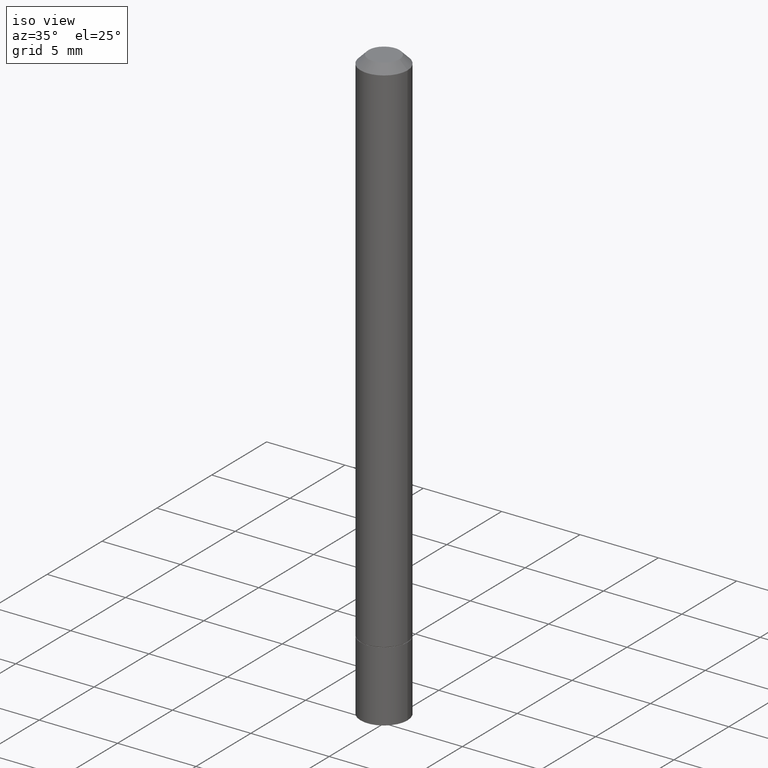
[diagram: clean part render]
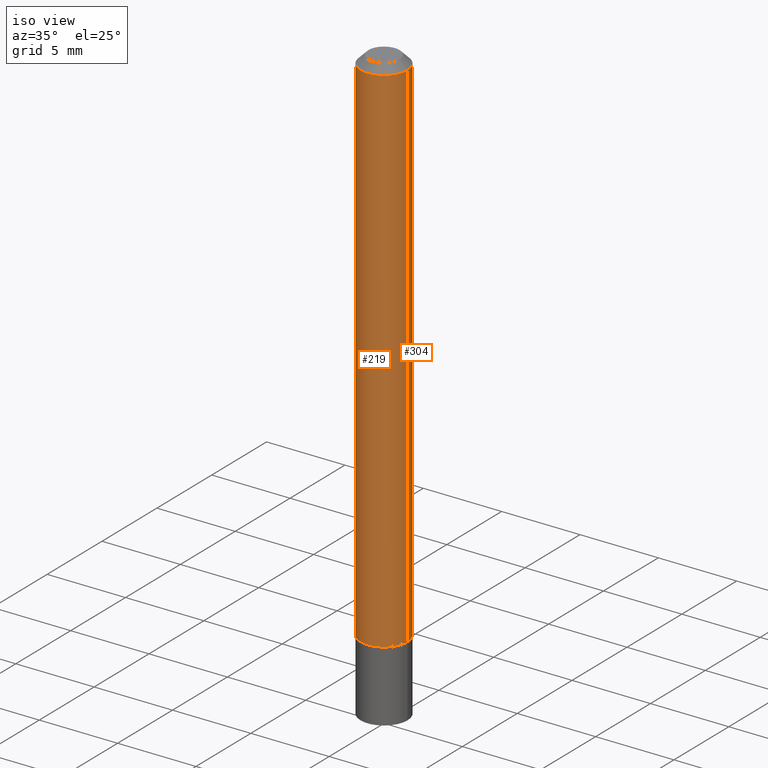
[diagram: same view with one multi-face feature highlighted, each face labeled with its STEP entity id]
A machine part, iso view. The highlighted faces form ONE feature: a constant-radius fillet chain: 2 tangent blend faces with common blend radius 1.4999 mm. The faces share edges in the B-rep.
Their STEP definitions:
[1] entity #219 (Cylinder):
#6 = CARTESIAN_POINT ( 'NONE',  ( -0.05904999999999999832, -1.916050956152782034E-15, -1.317899999999999627 ) ) ;
#19 = DIRECTION ( 'NONE',  ( 1.000000000000000000, -6.982962677686267499E-15, 4.876176775795936353E-29 ) ) ;
#35 = ORIENTED_EDGE ( 'NONE', *, *, #291, .F. ) ;
#56 = EDGE_CURVE ( 'NONE', #97, #138, #267, .T. ) ;
#61 = DIRECTION ( 'NONE',  ( 1.000000000000000000, -6.982962677686266711E-15, 0.000000000000000000 ) ) ;
#62 = CIRCLE ( 'NONE', #264, 0.05904999999999999832 ) ;
#63 = EDGE_CURVE ( 'NONE', #97, #185, #62, .T. ) ;
#65 = CARTESIAN_POINT ( 'NONE',  ( -0.05904999999999997057, 4.195754854663389506E-16, -2.904631170795520841E-30 ) ) ;
#81 = AXIS2_PLACEMENT_3D ( 'NONE', #296, #195, #19 ) ;
#83 = CYLINDRICAL_SURFACE ( 'NONE', #81, 0.05904999999999997057 ) ;
#89 = VECTOR ( 'NONE', #116, 39.37007874015748143 ) ;
#92 = DIRECTION ( 'NONE',  ( -2.445468806185136597E-29, 3.491481338843145583E-15, 1.000000000000000000 ) ) ;
#93 = CARTESIAN_POINT ( 'NONE',  ( 4.890937612370288923E-31, -6.982962677686312563E-17, -0.02000000000000006287 ) ) ;
#97 = VERTEX_POINT ( 'NONE', #6 ) ;
#99 = DIRECTION ( 'NONE',  ( -2.445468806185136597E-29, 3.491481338843145583E-15, 1.000000000000000000 ) ) ;
#101 = CARTESIAN_POINT ( 'NONE',  ( 0.05904999999999994975, -4.749420335452716734E-16, -0.02000000000000006287 ) ) ;
#116 = DIRECTION ( 'NONE',  ( -2.445468806185136877E-29, 3.491481338843145188E-15, 1.000000000000000000 ) ) ;
#119 = EDGE_LOOP ( 'NONE', ( #279, #287, #208, #35 ) ) ;
#123 = VERTEX_POINT ( 'NONE', #101 ) ;
#136 = DIRECTION ( 'NONE',  ( -2.445468806185136877E-29, 3.491481338843145188E-15, 1.000000000000000000 ) ) ;
#138 = VERTEX_POINT ( 'NONE', #300 ) ;
#153 = CARTESIAN_POINT ( 'NONE',  ( 0.05904999999999997057, -4.123439461173738848E-16, 2.879382386107498819E-30 ) ) ;
#161 = FACE_OUTER_BOUND ( 'NONE', #119, .T. ) ;
#170 = CIRCLE ( 'NONE', #254, 0.05904999999999994975 ) ;
#185 = VERTEX_POINT ( 'NONE', #329 ) ;
#195 = DIRECTION ( 'NONE',  ( -2.445468806185136597E-29, 3.491481338843145583E-15, 1.000000000000000000 ) ) ;
#208 = ORIENTED_EDGE ( 'NONE', *, *, #353, .T. ) ;
#217 = DIRECTION ( 'NONE',  ( 1.000000000000000000, -6.982962677686273021E-15, 0.000000000000000000 ) ) ;
#219 = ADVANCED_FACE ( 'NONE', ( #161 ), #83, .T. ) ;
#221 = VECTOR ( 'NONE', #136, 39.37007874015748143 ) ;
#231 = LINE ( 'NONE', #153, #89 ) ;
#254 = AXIS2_PLACEMENT_3D ( 'NONE', #93, #92, #61 ) ;
#264 = AXIS2_PLACEMENT_3D ( 'NONE', #355, #99, #217 ) ;
#267 = LINE ( 'NONE', #65, #221 ) ;
#279 = ORIENTED_EDGE ( 'NONE', *, *, #56, .F. ) ;
#287 = ORIENTED_EDGE ( 'NONE', *, *, #63, .T. ) ;
#291 = EDGE_CURVE ( 'NONE', #138, #123, #170, .T. ) ;
#296 = CARTESIAN_POINT ( 'NONE',  ( 0.000000000000000000, 0.000000000000000000, 0.000000000000000000 ) ) ;
#300 = CARTESIAN_POINT ( 'NONE',  ( -0.05904999999999994975, 3.425143193405105373E-16, -0.02000000000000006287 ) ) ;
#329 = CARTESIAN_POINT ( 'NONE',  ( 0.05904999999999999832, -5.013767202578754676E-15, -1.317899999999999627 ) ) ;
#353 = EDGE_CURVE ( 'NONE', #185, #123, #231, .T. ) ;
#355 = CARTESIAN_POINT ( 'NONE',  ( 3.222883339671390452E-29, -4.601423256461380545E-15, -1.317899999999999627 ) ) ;
[2] entity #304 (Cylinder):
#6 = CARTESIAN_POINT ( 'NONE',  ( -0.05904999999999999832, -1.916050956152782034E-15, -1.317899999999999627 ) ) ;
#9 = CIRCLE ( 'NONE', #110, 0.05904999999999999832 ) ;
#36 = CARTESIAN_POINT ( 'NONE',  ( 0.000000000000000000, 0.000000000000000000, 0.000000000000000000 ) ) ;
#43 = ORIENTED_EDGE ( 'NONE', *, *, #56, .T. ) ;
#56 = EDGE_CURVE ( 'NONE', #97, #138, #267, .T. ) ;
#64 = DIRECTION ( 'NONE',  ( -2.445468806185136597E-29, 3.491481338843145583E-15, 1.000000000000000000 ) ) ;
#65 = CARTESIAN_POINT ( 'NONE',  ( -0.05904999999999997057, 4.195754854663389506E-16, -2.904631170795520841E-30 ) ) ;
#89 = VECTOR ( 'NONE', #116, 39.37007874015748143 ) ;
#94 = CIRCLE ( 'NONE', #205, 0.05904999999999994975 ) ;
#97 = VERTEX_POINT ( 'NONE', #6 ) ;
#101 = CARTESIAN_POINT ( 'NONE',  ( 0.05904999999999994975, -4.749420335452716734E-16, -0.02000000000000006287 ) ) ;
#109 = DIRECTION ( 'NONE',  ( 1.000000000000000000, -6.982962677686273021E-15, 0.000000000000000000 ) ) ;
#110 = AXIS2_PLACEMENT_3D ( 'NONE', #243, #115, #109 ) ;
#115 = DIRECTION ( 'NONE',  ( -2.445468806185136597E-29, 3.491481338843145583E-15, 1.000000000000000000 ) ) ;
#116 = DIRECTION ( 'NONE',  ( -2.445468806185136877E-29, 3.491481338843145188E-15, 1.000000000000000000 ) ) ;
#118 = FACE_OUTER_BOUND ( 'NONE', #172, .T. ) ;
#123 = VERTEX_POINT ( 'NONE', #101 ) ;
#136 = DIRECTION ( 'NONE',  ( -2.445468806185136877E-29, 3.491481338843145188E-15, 1.000000000000000000 ) ) ;
#138 = VERTEX_POINT ( 'NONE', #300 ) ;
#140 = DIRECTION ( 'NONE',  ( -2.445468806185136597E-29, 3.491481338843145583E-15, 1.000000000000000000 ) ) ;
#146 = ORIENTED_EDGE ( 'NONE', *, *, #201, .F. ) ;
#150 = ORIENTED_EDGE ( 'NONE', *, *, #190, .T. ) ;
#153 = CARTESIAN_POINT ( 'NONE',  ( 0.05904999999999997057, -4.123439461173738848E-16, 2.879382386107498819E-30 ) ) ;
#172 = EDGE_LOOP ( 'NONE', ( #150, #43, #146, #317 ) ) ;
#185 = VERTEX_POINT ( 'NONE', #329 ) ;
#190 = EDGE_CURVE ( 'NONE', #185, #97, #9, .T. ) ;
#194 = DIRECTION ( 'NONE',  ( 1.000000000000000000, -6.982962677686266711E-15, 0.000000000000000000 ) ) ;
#201 = EDGE_CURVE ( 'NONE', #123, #138, #94, .T. ) ;
#205 = AXIS2_PLACEMENT_3D ( 'NONE', #245, #140, #194 ) ;
#209 = DIRECTION ( 'NONE',  ( 1.000000000000000000, -6.982962677686267499E-15, 4.876176775795936353E-29 ) ) ;
#221 = VECTOR ( 'NONE', #136, 39.37007874015748143 ) ;
#227 = CYLINDRICAL_SURFACE ( 'NONE', #324, 0.05904999999999997057 ) ;
#231 = LINE ( 'NONE', #153, #89 ) ;
#243 = CARTESIAN_POINT ( 'NONE',  ( 3.222883339671390452E-29, -4.601423256461380545E-15, -1.317899999999999627 ) ) ;
#245 = CARTESIAN_POINT ( 'NONE',  ( 4.890937612370288923E-31, -6.982962677686312563E-17, -0.02000000000000006287 ) ) ;
#267 = LINE ( 'NONE', #65, #221 ) ;
#300 = CARTESIAN_POINT ( 'NONE',  ( -0.05904999999999994975, 3.425143193405105373E-16, -0.02000000000000006287 ) ) ;
#304 = ADVANCED_FACE ( 'NONE', ( #118 ), #227, .T. ) ;
#317 = ORIENTED_EDGE ( 'NONE', *, *, #353, .F. ) ;
#324 = AXIS2_PLACEMENT_3D ( 'NONE', #36, #64, #209 ) ;
#329 = CARTESIAN_POINT ( 'NONE',  ( 0.05904999999999999832, -5.013767202578754676E-15, -1.317899999999999627 ) ) ;
#353 = EDGE_CURVE ( 'NONE', #185, #123, #231, .T. ) ;